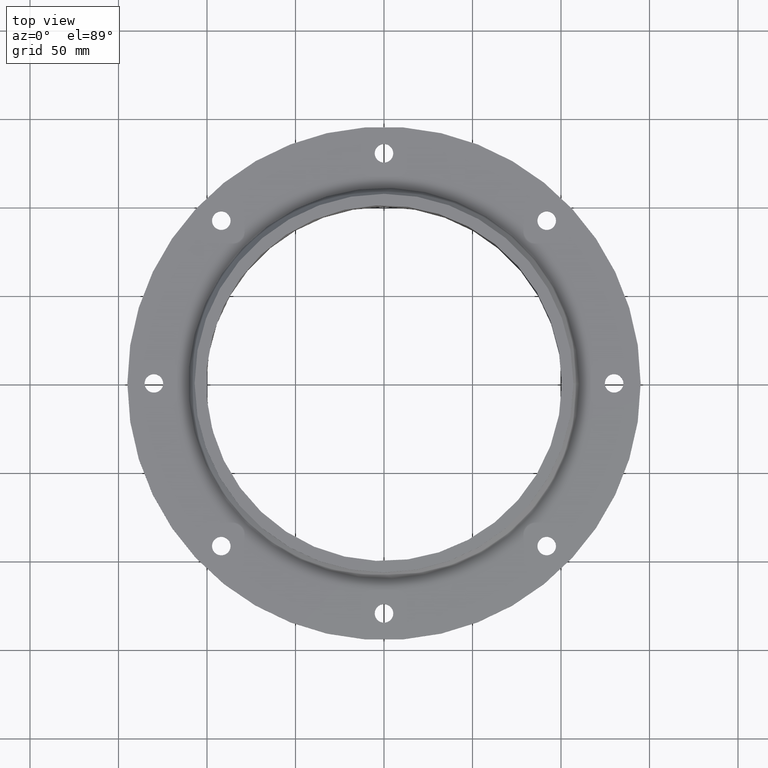
[diagram: clean part render]
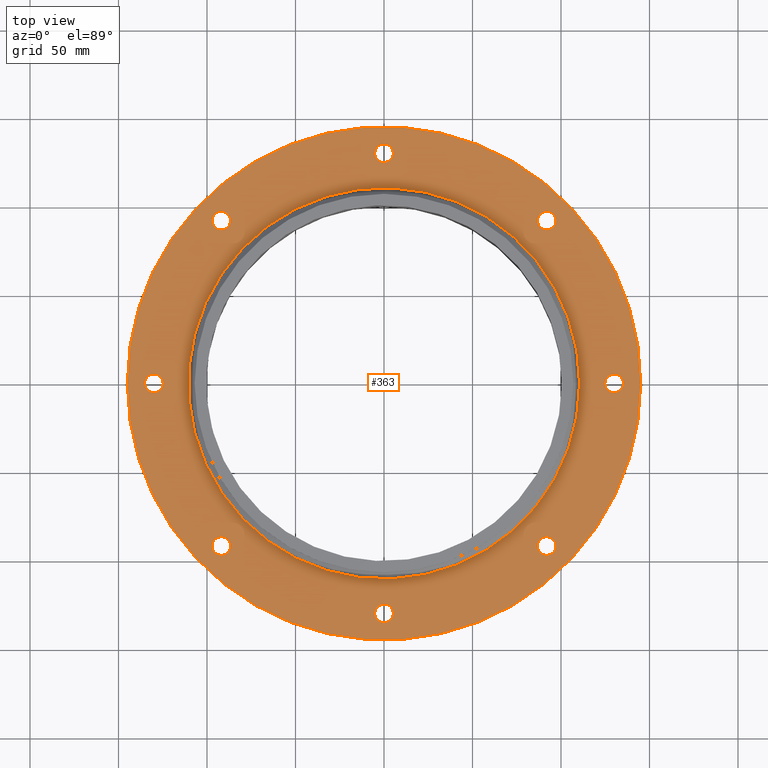
[diagram: same view with one face highlighted and labeled with its STEP entity id]
A machine part, top view. The second image highlights one B-rep face of the part: STEP entity #363.
In plain terms, the highlighted planar face has unit normal (0, 0, 1).
Its self-contained STEP definition (entity closure, byte-faithful):
#84=CARTESIAN_POINT('',(-124.75,0.0,-6.000000000000004));
#85=VERTEX_POINT('',#84);
#86=CARTESIAN_POINT('',(-130.0,0.0,-6.000000000000014));
#87=DIRECTION('',(0.0,0.0,-1.0));
#88=DIRECTION('',(1.0,0.0,0.0));
#89=AXIS2_PLACEMENT_3D('',#86,#87,#88);
#90=CIRCLE('',#89,5.25);
#91=EDGE_CURVE('',#85,#85,#90,.T.);
#112=CARTESIAN_POINT('',(5.249999999999973,-130.0,-6.000000000000004));
#113=VERTEX_POINT('',#112);
#114=CARTESIAN_POINT('',(-2.664535E-014,-130.0,-6.000000000000014));
#115=DIRECTION('',(0.0,0.0,-1.0));
#116=DIRECTION('',(1.0,0.0,0.0));
#117=AXIS2_PLACEMENT_3D('',#114,#115,#116);
#118=CIRCLE('',#117,5.25);
#119=EDGE_CURVE('',#113,#113,#118,.T.);
#140=CARTESIAN_POINT('',(135.25,-2.664535E-014,-6.000000000000004));
#141=VERTEX_POINT('',#140);
#142=CARTESIAN_POINT('',(130.0,-2.664535E-014,-6.000000000000014));
#143=DIRECTION('',(0.0,0.0,-1.0));
#144=DIRECTION('',(1.0,0.0,0.0));
#145=AXIS2_PLACEMENT_3D('',#142,#143,#144);
#146=CIRCLE('',#145,5.25);
#147=EDGE_CURVE('',#141,#141,#146,.T.);
#168=CARTESIAN_POINT('',(5.25,130.0,-6.000000000000004));
#169=VERTEX_POINT('',#168);
#170=CARTESIAN_POINT('',(0.0,130.0,-6.000000000000014));
#171=DIRECTION('',(0.0,0.0,-1.0));
#172=DIRECTION('',(1.0,0.0,0.0));
#173=AXIS2_PLACEMENT_3D('',#170,#171,#172);
#174=CIRCLE('',#173,5.25);
#175=EDGE_CURVE('',#169,#169,#174,.T.);
#196=CARTESIAN_POINT('',(97.17388155425121,91.923881554251182,-6.000000000000004));
#197=VERTEX_POINT('',#196);
#198=CARTESIAN_POINT('',(91.92388155425121,91.923881554251182,-6.000000000000014));
#199=DIRECTION('',(0.0,0.0,-1.0));
#200=DIRECTION('',(1.0,0.0,0.0));
#201=AXIS2_PLACEMENT_3D('',#198,#199,#200);
#202=CIRCLE('',#201,5.25);
#203=EDGE_CURVE('',#197,#197,#202,.T.);
#224=CARTESIAN_POINT('',(97.173881554251182,-91.92388155425121,-6.000000000000004));
#225=VERTEX_POINT('',#224);
#226=CARTESIAN_POINT('',(91.923881554251182,-91.92388155425121,-6.000000000000014));
#227=DIRECTION('',(0.0,0.0,-1.0));
#228=DIRECTION('',(1.0,0.0,0.0));
#229=AXIS2_PLACEMENT_3D('',#226,#227,#228);
#230=CIRCLE('',#229,5.25);
#231=EDGE_CURVE('',#225,#225,#230,.T.);
#252=CARTESIAN_POINT('',(-86.67388155425121,-91.923881554251196,-6.000000000000004));
#253=VERTEX_POINT('',#252);
#254=CARTESIAN_POINT('',(-91.92388155425121,-91.923881554251196,-6.000000000000014));
#255=DIRECTION('',(0.0,0.0,-1.0));
#256=DIRECTION('',(1.0,0.0,0.0));
#257=AXIS2_PLACEMENT_3D('',#254,#255,#256);
#258=CIRCLE('',#257,5.25);
#259=EDGE_CURVE('',#253,#253,#258,.T.);
#280=CARTESIAN_POINT('',(-86.673881554251182,91.92388155425121,-6.000000000000004));
#281=VERTEX_POINT('',#280);
#282=CARTESIAN_POINT('',(-91.923881554251196,91.92388155425121,-6.000000000000014));
#283=DIRECTION('',(0.0,0.0,-1.0));
#284=DIRECTION('',(1.0,0.0,0.0));
#285=AXIS2_PLACEMENT_3D('',#282,#283,#284);
#286=CIRCLE('',#285,5.25);
#287=EDGE_CURVE('',#281,#281,#286,.T.);
#297=CARTESIAN_POINT('',(110.5,1.353235E-014,-6.000000000000004));
#298=VERTEX_POINT('',#297);
#299=CARTESIAN_POINT('',(0.0,0.0,-6.000000000000004));
#300=DIRECTION('',(0.0,0.0,1.0));
#301=DIRECTION('',(-1.0,0.0,0.0));
#302=AXIS2_PLACEMENT_3D('',#299,#300,#301);
#303=CIRCLE('',#302,110.5);
#304=EDGE_CURVE('',#298,#298,#303,.T.);
#320=CARTESIAN_POINT('',(-8.013508E-015,3.266863E-015,-6.000000000000004));
#321=DIRECTION('',(0.0,0.0,1.0));
#322=DIRECTION('',(1.0,0.0,0.0));
#323=AXIS2_PLACEMENT_3D('',#320,#321,#322);
#324=PLANE('',#323);
#325=CARTESIAN_POINT('',(145.0,1.775738E-014,-6.000000000000002));
#326=VERTEX_POINT('',#325);
#327=CARTESIAN_POINT('',(0.0,0.0,-6.000000000000002));
#328=DIRECTION('',(0.0,0.0,1.0));
#329=DIRECTION('',(-1.0,0.0,0.0));
#330=AXIS2_PLACEMENT_3D('',#327,#328,#329);
#331=CIRCLE('',#330,145.0);
#332=EDGE_CURVE('',#326,#326,#331,.T.);
#333=ORIENTED_EDGE('',*,*,#332,.T.);
#334=EDGE_LOOP('',(#333));
#335=FACE_OUTER_BOUND('',#334,.T.);
#336=ORIENTED_EDGE('',*,*,#91,.T.);
#337=EDGE_LOOP('',(#336));
#338=FACE_BOUND('',#337,.T.);
#339=ORIENTED_EDGE('',*,*,#119,.T.);
#340=EDGE_LOOP('',(#339));
#341=FACE_BOUND('',#340,.T.);
#342=ORIENTED_EDGE('',*,*,#147,.T.);
#343=EDGE_LOOP('',(#342));
#344=FACE_BOUND('',#343,.T.);
#345=ORIENTED_EDGE('',*,*,#175,.T.);
#346=EDGE_LOOP('',(#345));
#347=FACE_BOUND('',#346,.T.);
#348=ORIENTED_EDGE('',*,*,#203,.T.);
#349=EDGE_LOOP('',(#348));
#350=FACE_BOUND('',#349,.T.);
#351=ORIENTED_EDGE('',*,*,#231,.T.);
#352=EDGE_LOOP('',(#351));
#353=FACE_BOUND('',#352,.T.);
#354=ORIENTED_EDGE('',*,*,#259,.T.);
#355=EDGE_LOOP('',(#354));
#356=FACE_BOUND('',#355,.T.);
#357=ORIENTED_EDGE('',*,*,#287,.T.);
#358=EDGE_LOOP('',(#357));
#359=FACE_BOUND('',#358,.T.);
#360=ORIENTED_EDGE('',*,*,#304,.F.);
#361=EDGE_LOOP('',(#360));
#362=FACE_BOUND('',#361,.T.);
#363=ADVANCED_FACE('',(#335,#338,#341,#344,#347,#350,#353,#356,#359,#362),#324,.T.);